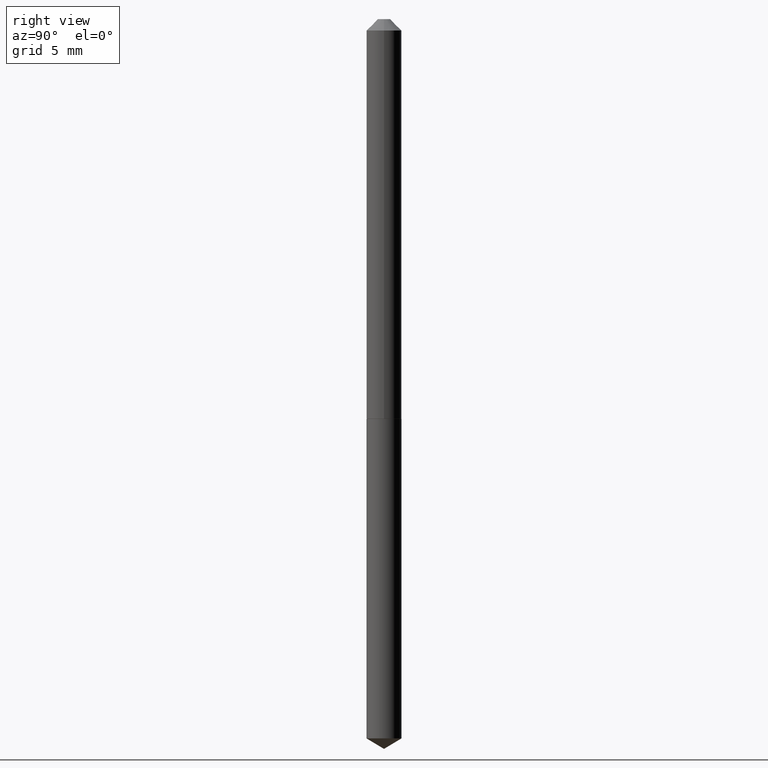
[diagram: clean part render]
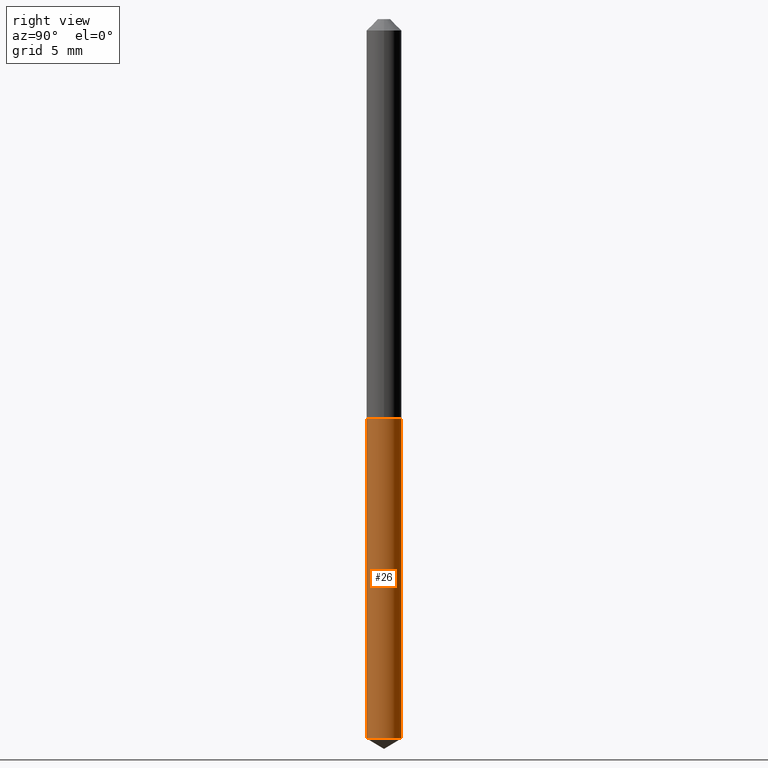
[diagram: same view with one face highlighted and labeled with its STEP entity id]
A machine part, right view. The second image highlights one B-rep face of the part: STEP entity #26.
In plain terms, the highlighted cylindrical surface (edge-blend (fillet) strip) has radius 1.2192 mm, axis along (-0, 0, 1).
Its self-contained STEP definition (entity closure, byte-faithful):
#5 = VERTEX_POINT ( 'NONE', #220 ) ;
#6 = VERTEX_POINT ( 'NONE', #305 ) ;
#12 = EDGE_CURVE ( 'NONE', #5, #192, #240, .T. ) ;
#25 = EDGE_CURVE ( 'NONE', #6, #5, #221, .T. ) ;
#26 = ADVANCED_FACE ( 'NONE', ( #79 ), #223, .T. ) ;
#57 = AXIS2_PLACEMENT_3D ( 'NONE', #282, #311, #320 ) ;
#70 = ORIENTED_EDGE ( 'NONE', *, *, #324, .F. ) ;
#79 = FACE_OUTER_BOUND ( 'NONE', #134, .T. ) ;
#90 = CARTESIAN_POINT ( 'NONE',  ( 3.410605131648963647E-16, 0.04799999999999617073, -1.096000000000000085 ) ) ;
#106 = DIRECTION ( 'NONE',  ( -6.982962677686265922E-15, -1.000000000000000000, 5.691349986800547879E-15 ) ) ;
#110 = DIRECTION ( 'NONE',  ( -2.445452328038244090E-29, 3.491504936487373507E-15, 1.000000000000000000 ) ) ;
#128 = DIRECTION ( 'NONE',  ( -2.445452328038244090E-29, 3.491504936487373507E-15, 1.000000000000000000 ) ) ;
#134 = EDGE_LOOP ( 'NONE', ( #340, #214, #184, #70 ) ) ;
#136 = CARTESIAN_POINT ( 'NONE',  ( 3.410605131648748190E-16, 0.04799999999999617073, -1.096000000000000085 ) ) ;
#146 = VECTOR ( 'NONE', #328, 39.37007874015748143 ) ;
#170 = AXIS2_PLACEMENT_3D ( 'NONE', #269, #128, #106 ) ;
#183 = VECTOR ( 'NONE', #110, 39.37007874015748143 ) ;
#184 = ORIENTED_EDGE ( 'NONE', *, *, #199, .F. ) ;
#189 = CARTESIAN_POINT ( 'NONE',  ( -3.351822085289139434E-16, -0.04800000000000382433, -1.095999999999999863 ) ) ;
#192 = VERTEX_POINT ( 'NONE', #90 ) ;
#197 = DIRECTION ( 'NONE',  ( -6.982962677686265922E-15, -1.000000000000000000, 2.845674993400273939E-15 ) ) ;
#199 = EDGE_CURVE ( 'NONE', #375, #192, #357, .T. ) ;
#201 = LINE ( 'NONE', #307, #183 ) ;
#214 = ORIENTED_EDGE ( 'NONE', *, *, #12, .T. ) ;
#220 = CARTESIAN_POINT ( 'NONE',  ( 3.410605131648963647E-16, 0.04799999999999312456, -1.971158690286677340 ) ) ;
#221 = CIRCLE ( 'NONE', #170, 0.04800000000000000100 ) ;
#223 = CYLINDRICAL_SURFACE ( 'NONE', #265, 0.04800000000000000100 ) ;
#240 = LINE ( 'NONE', #136, #146 ) ;
#265 = AXIS2_PLACEMENT_3D ( 'NONE', #341, #373, #197 ) ;
#269 = CARTESIAN_POINT ( 'NONE',  ( 4.820392668143365381E-29, -6.882284434717845235E-15, -1.971158690286677118 ) ) ;
#282 = CARTESIAN_POINT ( 'NONE',  ( 2.680233811578909638E-29, -3.826663547372087284E-15, -1.096000000000000085 ) ) ;
#305 = CARTESIAN_POINT ( 'NONE',  ( -3.351822085288925948E-16, -0.04800000000000689132, -1.971158690286676896 ) ) ;
#307 = CARTESIAN_POINT ( 'NONE',  ( -3.351822085289139434E-16, -0.04800000000000382433, -1.095999999999999863 ) ) ;
#311 = DIRECTION ( 'NONE',  ( -2.445452328038244090E-29, 3.491504936487373507E-15, 1.000000000000000000 ) ) ;
#320 = DIRECTION ( 'NONE',  ( -6.982962677686265922E-15, -1.000000000000000000, 2.845674993400273939E-15 ) ) ;
#324 = EDGE_CURVE ( 'NONE', #6, #375, #201, .T. ) ;
#328 = DIRECTION ( 'NONE',  ( -2.445452328038244090E-29, 3.491504936487373507E-15, 1.000000000000000000 ) ) ;
#340 = ORIENTED_EDGE ( 'NONE', *, *, #25, .T. ) ;
#341 = CARTESIAN_POINT ( 'NONE',  ( 2.680233811578909638E-29, -3.826663547372087284E-15, -1.096000000000000085 ) ) ;
#357 = CIRCLE ( 'NONE', #57, 0.04800000000000000100 ) ;
#373 = DIRECTION ( 'NONE',  ( -2.445452328038244090E-29, 3.491504936487373507E-15, 1.000000000000000000 ) ) ;
#375 = VERTEX_POINT ( 'NONE', #189 ) ;